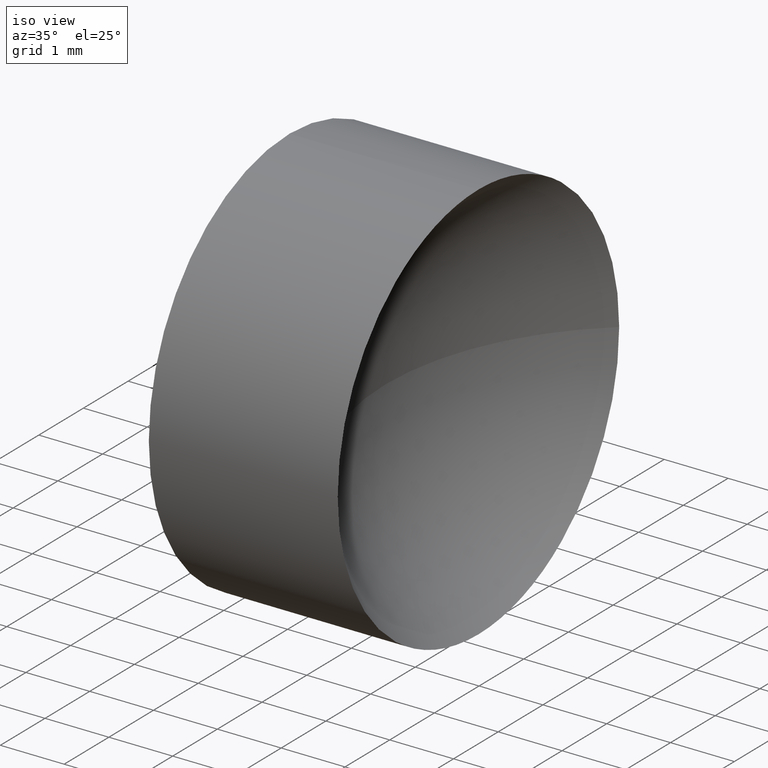
[diagram: clean part render]
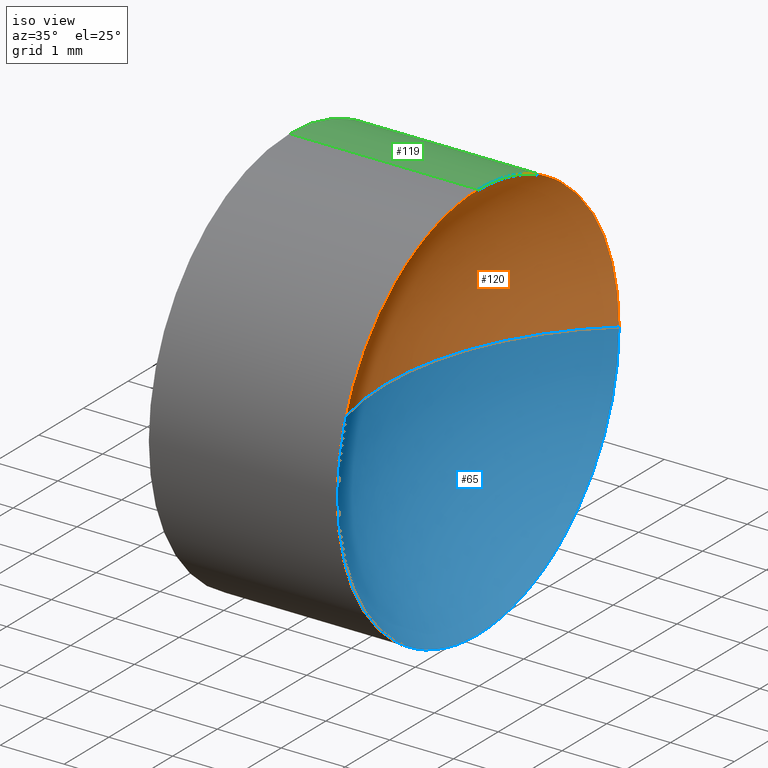
[diagram: same view with three faces highlighted in distinct colors, each labeled with its STEP entity id]
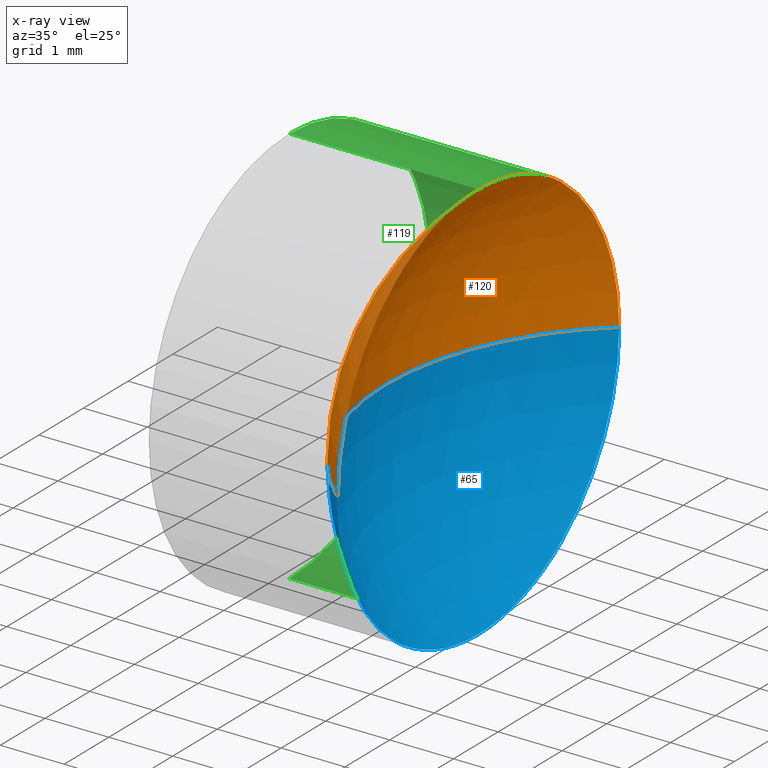
[diagram: x-ray of the same camera — body ghosted, the three highlighted faces saturated]
A machine part, iso view with three faces highlighted in distinct colors.
The next image is the same camera in x-ray (body ghosted, the three faces saturated) — at least one of them is partly hidden behind the body in this view.
Their STEP definitions:

[orange] entity #120 — the highlighted spherical surface has radius 4.13 mm.
#1 = DIRECTION ( 'NONE',  ( 0.0000000000000000000, -1.000000000000000000, 0.0000000000000000000 ) ) ;
#2 = DIRECTION ( 'NONE',  ( -1.000000000000000000, 0.0000000000000000000, 0.0000000000000000000 ) ) ;
#10 = ORIENTED_EDGE ( 'NONE', *, *, #112, .T. ) ;
#22 = VERTEX_POINT ( 'NONE', #31 ) ;
#23 = ORIENTED_EDGE ( 'NONE', *, *, #51, .F. ) ;
#24 = FACE_OUTER_BOUND ( 'NONE', #91, .T. ) ;
#25 = VERTEX_POINT ( 'NONE', #150 ) ;
#30 = CARTESIAN_POINT ( 'NONE',  ( 25.26823906860704800, 16.18112609140303700, 3.857637417314161200E-016 ) ) ;
#31 = CARTESIAN_POINT ( 'NONE',  ( 25.26823906860704800, 13.03112609140304000, 3.149999999999998100 ) ) ;
#33 = CARTESIAN_POINT ( 'NONE',  ( 27.93926883257449500, 13.03112609140304000, 0.0000000000000000000 ) ) ;
#42 = DIRECTION ( 'NONE',  ( 0.0000000000000000000, -1.224646799147353200E-016, 1.000000000000000000 ) ) ;
#51 = EDGE_CURVE ( 'NONE', #22, #161, #132, .T. ) ;
#56 = CARTESIAN_POINT ( 'NONE',  ( 23.80926883257449600, 13.03112609140304000, 0.0000000000000000000 ) ) ;
#57 = DIRECTION ( 'NONE',  ( 0.0000000000000000000, 0.0000000000000000000, -1.000000000000000000 ) ) ;
#59 = DIRECTION ( 'NONE',  ( -1.000000000000000000, -0.0000000000000000000, -0.0000000000000000000 ) ) ;
#66 = DIRECTION ( 'NONE',  ( 0.0000000000000000000, 0.0000000000000000000, 1.000000000000000000 ) ) ;
#72 = CARTESIAN_POINT ( 'NONE',  ( 25.26823906860704800, 13.03112609140304000, 0.0000000000000000000 ) ) ;
#78 = CARTESIAN_POINT ( 'NONE',  ( 27.93926883257449500, 13.03112609140304000, 0.0000000000000000000 ) ) ;
#86 = DIRECTION ( 'NONE',  ( 0.0000000000000000000, 0.0000000000000000000, 1.000000000000000000 ) ) ;
#88 = AXIS2_PLACEMENT_3D ( 'NONE', #33, #57, #2 ) ;
#91 = EDGE_LOOP ( 'NONE', ( #156, #23, #174, #10 ) ) ;
#101 = DIRECTION ( 'NONE',  ( 0.0000000000000000000, 0.0000000000000000000, 1.000000000000000000 ) ) ;
#106 = DIRECTION ( 'NONE',  ( -1.000000000000000000, -0.0000000000000000000, -0.0000000000000000000 ) ) ;
#107 = EDGE_CURVE ( 'NONE', #161, #108, #127, .T. ) ;
#108 = VERTEX_POINT ( 'NONE', #56 ) ;
#112 = EDGE_CURVE ( 'NONE', #25, #108, #124, .T. ) ;
#114 = DIRECTION ( 'NONE',  ( 0.0000000000000000000, -1.000000000000000000, -1.224646799147353200E-016 ) ) ;
#115 = AXIS2_PLACEMENT_3D ( 'NONE', #72, #106, #66 ) ;
#120 = ADVANCED_FACE ( 'NONE', ( #24 ), #162, .F. ) ;
#124 = CIRCLE ( 'NONE', #88, 4.129999999999998100 ) ;
#127 = CIRCLE ( 'NONE', #141, 4.129999999999998100 ) ;
#132 = CIRCLE ( 'NONE', #115, 3.149999999999998100 ) ;
#137 = CIRCLE ( 'NONE', #147, 3.149999999999998100 ) ;
#140 = CARTESIAN_POINT ( 'NONE',  ( 25.26823906860704800, 13.03112609140304000, 0.0000000000000000000 ) ) ;
#141 = AXIS2_PLACEMENT_3D ( 'NONE', #168, #42, #114 ) ;
#147 = AXIS2_PLACEMENT_3D ( 'NONE', #140, #59, #101 ) ;
#148 = EDGE_CURVE ( 'NONE', #25, #22, #137, .T. ) ;
#150 = CARTESIAN_POINT ( 'NONE',  ( 25.26823906860704800, 9.881126091403041700, 0.0000000000000000000 ) ) ;
#156 = ORIENTED_EDGE ( 'NONE', *, *, #107, .F. ) ;
#161 = VERTEX_POINT ( 'NONE', #30 ) ;
#162 = SPHERICAL_SURFACE ( 'NONE', #171, 4.129999999999998100 ) ;
#168 = CARTESIAN_POINT ( 'NONE',  ( 27.93926883257449500, 13.03112609140304000, 0.0000000000000000000 ) ) ;
#171 = AXIS2_PLACEMENT_3D ( 'NONE', #78, #86, #1 ) ;
#174 = ORIENTED_EDGE ( 'NONE', *, *, #148, .F. ) ;

[blue] entity #65 — the highlighted spherical surface has radius 4.13 mm.
#2 = DIRECTION ( 'NONE',  ( -1.000000000000000000, 0.0000000000000000000, 0.0000000000000000000 ) ) ;
#14 = CARTESIAN_POINT ( 'NONE',  ( 25.26823906860704800, 13.03112609140304000, -3.149999999999998100 ) ) ;
#16 = CARTESIAN_POINT ( 'NONE',  ( 25.26823906860704800, 13.03112609140304000, 0.0000000000000000000 ) ) ;
#25 = VERTEX_POINT ( 'NONE', #150 ) ;
#28 = AXIS2_PLACEMENT_3D ( 'NONE', #155, #80, #173 ) ;
#30 = CARTESIAN_POINT ( 'NONE',  ( 25.26823906860704800, 16.18112609140303700, 3.857637417314161200E-016 ) ) ;
#33 = CARTESIAN_POINT ( 'NONE',  ( 27.93926883257449500, 13.03112609140304000, 0.0000000000000000000 ) ) ;
#37 = AXIS2_PLACEMENT_3D ( 'NONE', #16, #61, #102 ) ;
#42 = DIRECTION ( 'NONE',  ( 0.0000000000000000000, -1.224646799147353200E-016, 1.000000000000000000 ) ) ;
#46 = CIRCLE ( 'NONE', #28, 3.149999999999998100 ) ;
#56 = CARTESIAN_POINT ( 'NONE',  ( 23.80926883257449600, 13.03112609140304000, 0.0000000000000000000 ) ) ;
#57 = DIRECTION ( 'NONE',  ( 0.0000000000000000000, 0.0000000000000000000, -1.000000000000000000 ) ) ;
#61 = DIRECTION ( 'NONE',  ( -1.000000000000000000, -0.0000000000000000000, -0.0000000000000000000 ) ) ;
#63 = ORIENTED_EDGE ( 'NONE', *, *, #70, .F. ) ;
#65 = ADVANCED_FACE ( 'NONE', ( #157 ), #68, .F. ) ;
#67 = ORIENTED_EDGE ( 'NONE', *, *, #172, .F. ) ;
#68 = SPHERICAL_SURFACE ( 'NONE', #122, 4.129999999999998100 ) ;
#70 = EDGE_CURVE ( 'NONE', #163, #25, #46, .T. ) ;
#80 = DIRECTION ( 'NONE',  ( -1.000000000000000000, -0.0000000000000000000, -0.0000000000000000000 ) ) ;
#88 = AXIS2_PLACEMENT_3D ( 'NONE', #33, #57, #2 ) ;
#102 = DIRECTION ( 'NONE',  ( 0.0000000000000000000, 0.0000000000000000000, 1.000000000000000000 ) ) ;
#107 = EDGE_CURVE ( 'NONE', #161, #108, #127, .T. ) ;
#108 = VERTEX_POINT ( 'NONE', #56 ) ;
#112 = EDGE_CURVE ( 'NONE', #25, #108, #124, .T. ) ;
#114 = DIRECTION ( 'NONE',  ( 0.0000000000000000000, -1.000000000000000000, -1.224646799147353200E-016 ) ) ;
#122 = AXIS2_PLACEMENT_3D ( 'NONE', #184, #143, #144 ) ;
#124 = CIRCLE ( 'NONE', #88, 4.129999999999998100 ) ;
#127 = CIRCLE ( 'NONE', #141, 4.129999999999998100 ) ;
#129 = ORIENTED_EDGE ( 'NONE', *, *, #107, .T. ) ;
#141 = AXIS2_PLACEMENT_3D ( 'NONE', #168, #42, #114 ) ;
#143 = DIRECTION ( 'NONE',  ( 0.0000000000000000000, 0.0000000000000000000, 1.000000000000000000 ) ) ;
#144 = DIRECTION ( 'NONE',  ( 0.0000000000000000000, -1.000000000000000000, 0.0000000000000000000 ) ) ;
#150 = CARTESIAN_POINT ( 'NONE',  ( 25.26823906860704800, 9.881126091403041700, 0.0000000000000000000 ) ) ;
#155 = CARTESIAN_POINT ( 'NONE',  ( 25.26823906860704800, 13.03112609140304000, 0.0000000000000000000 ) ) ;
#157 = FACE_OUTER_BOUND ( 'NONE', #159, .T. ) ;
#159 = EDGE_LOOP ( 'NONE', ( #67, #129, #170, #63 ) ) ;
#161 = VERTEX_POINT ( 'NONE', #30 ) ;
#163 = VERTEX_POINT ( 'NONE', #14 ) ;
#168 = CARTESIAN_POINT ( 'NONE',  ( 27.93926883257449500, 13.03112609140304000, 0.0000000000000000000 ) ) ;
#170 = ORIENTED_EDGE ( 'NONE', *, *, #112, .F. ) ;
#172 = EDGE_CURVE ( 'NONE', #161, #163, #182, .T. ) ;
#173 = DIRECTION ( 'NONE',  ( 0.0000000000000000000, 0.0000000000000000000, 1.000000000000000000 ) ) ;
#182 = CIRCLE ( 'NONE', #37, 3.149999999999998100 ) ;
#184 = CARTESIAN_POINT ( 'NONE',  ( 27.93926883257449500, 13.03112609140304000, 0.0000000000000000000 ) ) ;

[green] entity #119 — the highlighted cylindrical surface (partial cylindrical patch) has radius 3.15 mm, axis along (-1, -0, -0).
#7 = EDGE_CURVE ( 'NONE', #125, #131, #18, .T. ) ;
#13 = CARTESIAN_POINT ( 'NONE',  ( 20.68403063513288800, 13.03112609140304000, -3.149999999999998100 ) ) ;
#14 = CARTESIAN_POINT ( 'NONE',  ( 25.26823906860704800, 13.03112609140304000, -3.149999999999998100 ) ) ;
#16 = CARTESIAN_POINT ( 'NONE',  ( 25.26823906860704800, 13.03112609140304000, 0.0000000000000000000 ) ) ;
#18 = CIRCLE ( 'NONE', #133, 3.149999999999998100 ) ;
#21 = CARTESIAN_POINT ( 'NONE',  ( 20.68403063513288800, 13.03112609140304000, 3.149999999999998100 ) ) ;
#22 = VERTEX_POINT ( 'NONE', #31 ) ;
#30 = CARTESIAN_POINT ( 'NONE',  ( 25.26823906860704800, 16.18112609140303700, 3.857637417314161200E-016 ) ) ;
#31 = CARTESIAN_POINT ( 'NONE',  ( 25.26823906860704800, 13.03112609140304000, 3.149999999999998100 ) ) ;
#34 = CYLINDRICAL_SURFACE ( 'NONE', #109, 3.149999999999998100 ) ;
#37 = AXIS2_PLACEMENT_3D ( 'NONE', #16, #61, #102 ) ;
#43 = EDGE_CURVE ( 'NONE', #163, #131, #60, .T. ) ;
#48 = EDGE_LOOP ( 'NONE', ( #90, #134, #121, #126, #49 ) ) ;
#49 = ORIENTED_EDGE ( 'NONE', *, *, #51, .T. ) ;
#51 = EDGE_CURVE ( 'NONE', #22, #161, #132, .T. ) ;
#60 = LINE ( 'NONE', #13, #169 ) ;
#61 = DIRECTION ( 'NONE',  ( -1.000000000000000000, -0.0000000000000000000, -0.0000000000000000000 ) ) ;
#66 = DIRECTION ( 'NONE',  ( 0.0000000000000000000, 0.0000000000000000000, 1.000000000000000000 ) ) ;
#72 = CARTESIAN_POINT ( 'NONE',  ( 25.26823906860704800, 13.03112609140304000, 0.0000000000000000000 ) ) ;
#76 = DIRECTION ( 'NONE',  ( -1.000000000000000000, -0.0000000000000000000, -0.0000000000000000000 ) ) ;
#82 = EDGE_CURVE ( 'NONE', #22, #125, #89, .T. ) ;
#85 = CARTESIAN_POINT ( 'NONE',  ( 22.30926883257449200, 13.03112609140304000, 0.0000000000000000000 ) ) ;
#87 = DIRECTION ( 'NONE',  ( 0.0000000000000000000, 0.0000000000000000000, 1.000000000000000000 ) ) ;
#89 = LINE ( 'NONE', #21, #105 ) ;
#90 = ORIENTED_EDGE ( 'NONE', *, *, #172, .T. ) ;
#92 = FACE_OUTER_BOUND ( 'NONE', #48, .T. ) ;
#102 = DIRECTION ( 'NONE',  ( 0.0000000000000000000, 0.0000000000000000000, 1.000000000000000000 ) ) ;
#105 = VECTOR ( 'NONE', #116, 1000.000000000000000 ) ;
#106 = DIRECTION ( 'NONE',  ( -1.000000000000000000, -0.0000000000000000000, -0.0000000000000000000 ) ) ;
#109 = AXIS2_PLACEMENT_3D ( 'NONE', #185, #154, #87 ) ;
#113 = CARTESIAN_POINT ( 'NONE',  ( 22.30926883257449200, 13.03112609140304000, 3.149999999999998100 ) ) ;
#115 = AXIS2_PLACEMENT_3D ( 'NONE', #72, #106, #66 ) ;
#116 = DIRECTION ( 'NONE',  ( -1.000000000000000000, -0.0000000000000000000, -0.0000000000000000000 ) ) ;
#119 = ADVANCED_FACE ( 'NONE', ( #92 ), #34, .T. ) ;
#121 = ORIENTED_EDGE ( 'NONE', *, *, #7, .F. ) ;
#125 = VERTEX_POINT ( 'NONE', #113 ) ;
#126 = ORIENTED_EDGE ( 'NONE', *, *, #82, .F. ) ;
#131 = VERTEX_POINT ( 'NONE', #153 ) ;
#132 = CIRCLE ( 'NONE', #115, 3.149999999999998100 ) ;
#133 = AXIS2_PLACEMENT_3D ( 'NONE', #85, #76, #186 ) ;
#134 = ORIENTED_EDGE ( 'NONE', *, *, #43, .T. ) ;
#152 = DIRECTION ( 'NONE',  ( -1.000000000000000000, -0.0000000000000000000, -0.0000000000000000000 ) ) ;
#153 = CARTESIAN_POINT ( 'NONE',  ( 22.30926883257449200, 13.03112609140304000, -3.149999999999998100 ) ) ;
#154 = DIRECTION ( 'NONE',  ( -1.000000000000000000, -0.0000000000000000000, -0.0000000000000000000 ) ) ;
#161 = VERTEX_POINT ( 'NONE', #30 ) ;
#163 = VERTEX_POINT ( 'NONE', #14 ) ;
#169 = VECTOR ( 'NONE', #152, 1000.000000000000000 ) ;
#172 = EDGE_CURVE ( 'NONE', #161, #163, #182, .T. ) ;
#182 = CIRCLE ( 'NONE', #37, 3.149999999999998100 ) ;
#185 = CARTESIAN_POINT ( 'NONE',  ( 20.68403063513288800, 13.03112609140304000, 0.0000000000000000000 ) ) ;
#186 = DIRECTION ( 'NONE',  ( 0.0000000000000000000, 0.0000000000000000000, 1.000000000000000000 ) ) ;